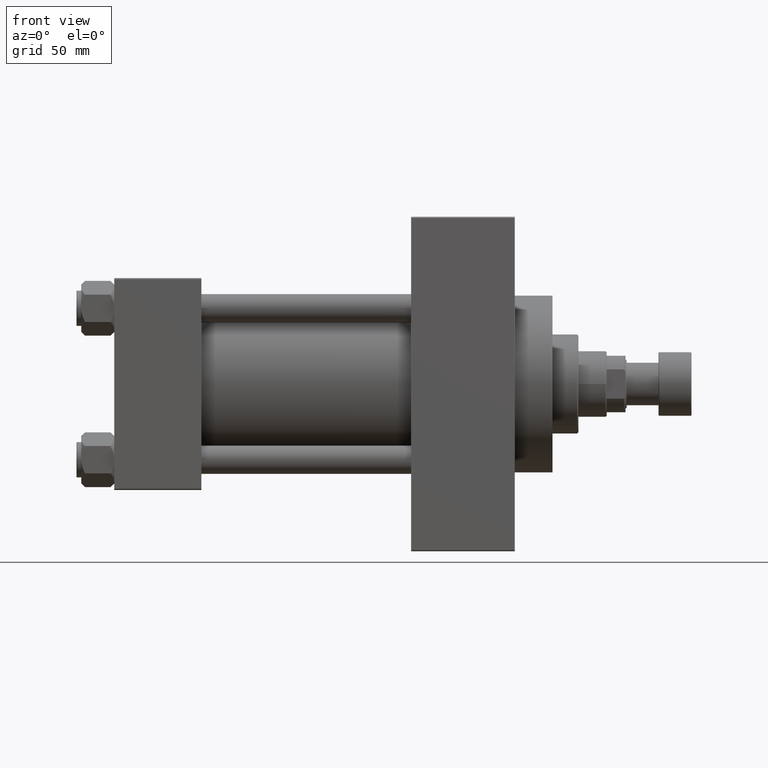
[diagram: clean part render]
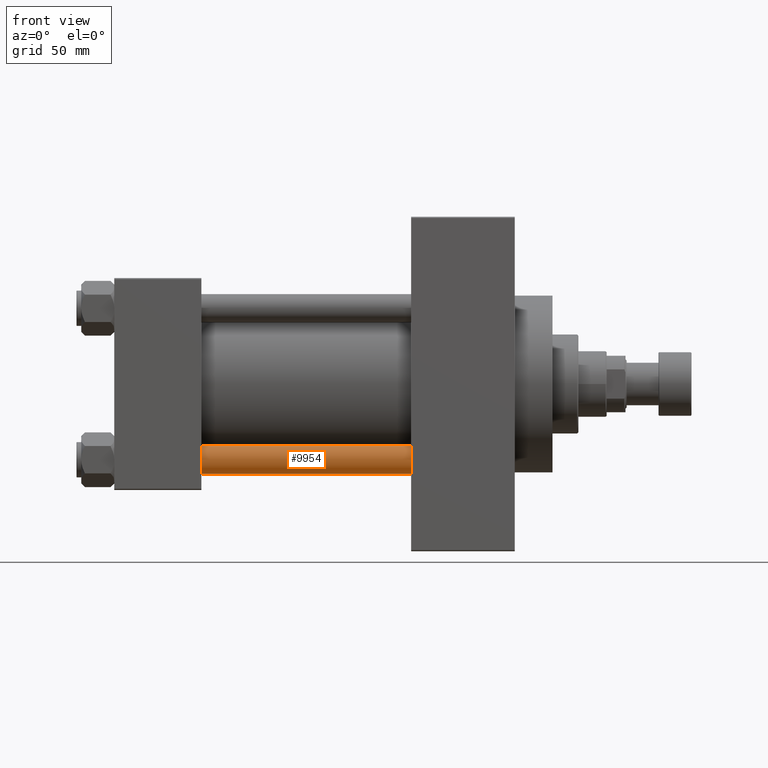
[diagram: same view with one face highlighted and labeled with its STEP entity id]
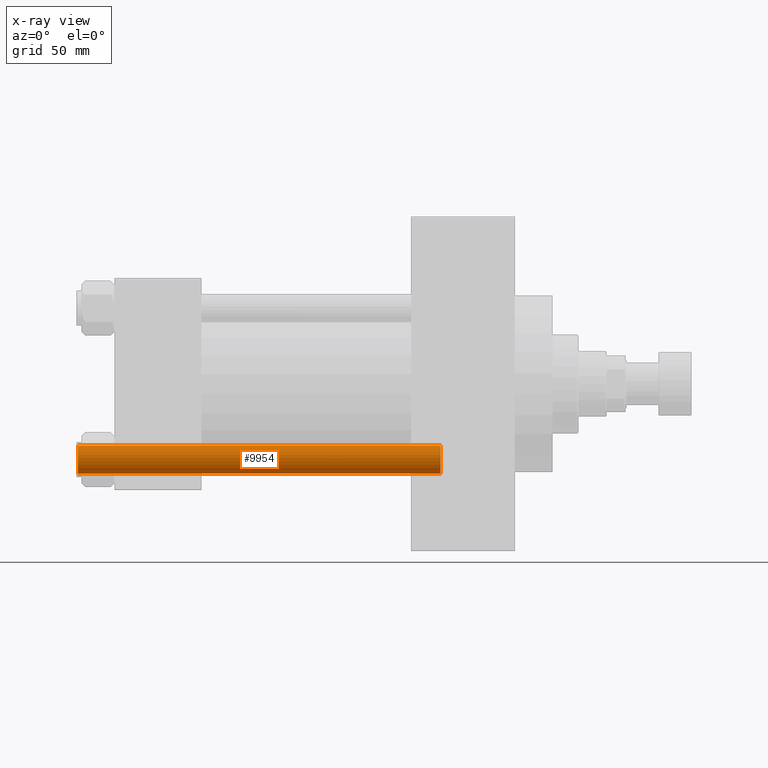
[diagram: x-ray of the same camera — body ghosted, the highlighted face saturated]
A machine part, front view. The second image highlights one B-rep face of the part: STEP entity #9954.
The next image is the same camera in x-ray: the body ghosted, the highlighted face saturated — about 0% of this face is hidden behind the body in this view.
In plain terms, the highlighted cylindrical surface (edge-blend (fillet) strip) has radius 6 mm, axis along (1, 0, 0).
Its self-contained STEP definition (entity closure, byte-faithful):
#1316 = VERTEX_POINT ( 'NONE', #24518 ) ;
#2776 = ORIENTED_EDGE ( 'NONE', *, *, #38635, .F. ) ;
#2885 = CARTESIAN_POINT ( 'NONE',  ( 0.000000000000000000, 0.000000000000000000, 0.4999999999999726885 ) ) ;
#4611 = CIRCLE ( 'NONE', #31562, 6.000000000000000888 ) ;
#5604 = CYLINDRICAL_SURFACE ( 'NONE', #8265, 6.000000000000000888 ) ;
#8265 = AXIS2_PLACEMENT_3D ( 'NONE', #12574, #31872, #38622 ) ;
#9954 = ADVANCED_FACE ( 'NONE', ( #46559 ), #5604, .T. ) ;
#12227 = EDGE_CURVE ( 'NONE', #1316, #28582, #37323, .T. ) ;
#12574 = CARTESIAN_POINT ( 'NONE',  ( 0.000000000000000000, 0.000000000000000000, 155.0000000000000000 ) ) ;
#14320 = CIRCLE ( 'NONE', #25890, 6.000000000000000888 ) ;
#15953 = CARTESIAN_POINT ( 'NONE',  ( -6.000000000000000888, 0.000000000000000000, 154.5000000000000000 ) ) ;
#16032 = EDGE_LOOP ( 'NONE', ( #43871, #20598, #28195, #2776 ) ) ;
#18213 = VECTOR ( 'NONE', #21320, 1000.000000000000000 ) ;
#20598 = ORIENTED_EDGE ( 'NONE', *, *, #12227, .T. ) ;
#21320 = DIRECTION ( 'NONE',  ( -0.000000000000000000, -0.000000000000000000, -1.000000000000000000 ) ) ;
#21684 = DIRECTION ( 'NONE',  ( 1.000000000000000000, 0.000000000000000000, 0.000000000000000000 ) ) ;
#24455 = CARTESIAN_POINT ( 'NONE',  ( -6.000000000000000888, 0.000000000000000000, 155.0000000000000000 ) ) ;
#24518 = CARTESIAN_POINT ( 'NONE',  ( 6.000000000000000888, 7.347880794884120722E-16, 154.5000000000000000 ) ) ;
#25890 = AXIS2_PLACEMENT_3D ( 'NONE', #2885, #46987, #21684 ) ;
#26757 = CARTESIAN_POINT ( 'NONE',  ( 6.000000000000000888, 7.347880794884120722E-16, 0.4999999999999726885 ) ) ;
#26929 = CARTESIAN_POINT ( 'NONE',  ( 6.000000000000000888, 7.347880794884120722E-16, 155.0000000000000000 ) ) ;
#27126 = VERTEX_POINT ( 'NONE', #44490 ) ;
#28128 = CARTESIAN_POINT ( 'NONE',  ( 0.000000000000000000, 0.000000000000000000, 154.5000000000000000 ) ) ;
#28167 = VERTEX_POINT ( 'NONE', #15953 ) ;
#28195 = ORIENTED_EDGE ( 'NONE', *, *, #38191, .T. ) ;
#28582 = VERTEX_POINT ( 'NONE', #26757 ) ;
#31562 = AXIS2_PLACEMENT_3D ( 'NONE', #28128, #42834, #34897 ) ;
#31872 = DIRECTION ( 'NONE',  ( -0.000000000000000000, -0.000000000000000000, -1.000000000000000000 ) ) ;
#34897 = DIRECTION ( 'NONE',  ( 1.000000000000000000, 0.000000000000000000, 0.000000000000000000 ) ) ;
#37323 = LINE ( 'NONE', #26929, #37573 ) ;
#37573 = VECTOR ( 'NONE', #45011, 1000.000000000000000 ) ;
#38191 = EDGE_CURVE ( 'NONE', #28582, #27126, #14320, .T. ) ;
#38622 = DIRECTION ( 'NONE',  ( -1.000000000000000000, 0.000000000000000000, 0.000000000000000000 ) ) ;
#38635 = EDGE_CURVE ( 'NONE', #28167, #27126, #46879, .T. ) ;
#42834 = DIRECTION ( 'NONE',  ( 0.000000000000000000, 0.000000000000000000, -1.000000000000000000 ) ) ;
#43871 = ORIENTED_EDGE ( 'NONE', *, *, #46992, .T. ) ;
#44490 = CARTESIAN_POINT ( 'NONE',  ( -6.000000000000000888, 0.000000000000000000, 0.4999999999999726885 ) ) ;
#45011 = DIRECTION ( 'NONE',  ( -0.000000000000000000, -0.000000000000000000, -1.000000000000000000 ) ) ;
#46559 = FACE_OUTER_BOUND ( 'NONE', #16032, .T. ) ;
#46879 = LINE ( 'NONE', #24455, #18213 ) ;
#46987 = DIRECTION ( 'NONE',  ( -0.000000000000000000, -0.000000000000000000, 1.000000000000000000 ) ) ;
#46992 = EDGE_CURVE ( 'NONE', #28167, #1316, #4611, .T. ) ;